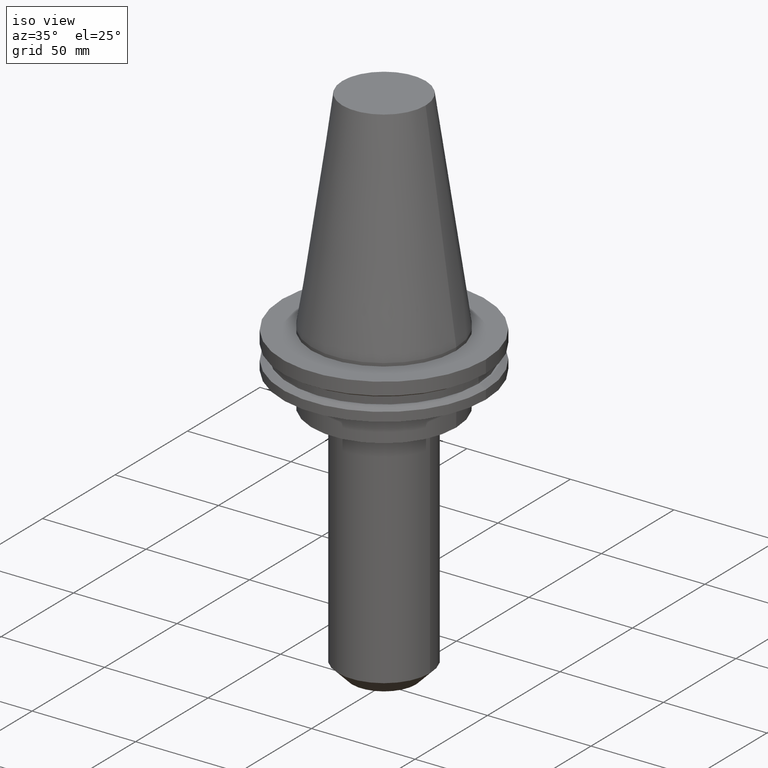
[diagram: clean part render]
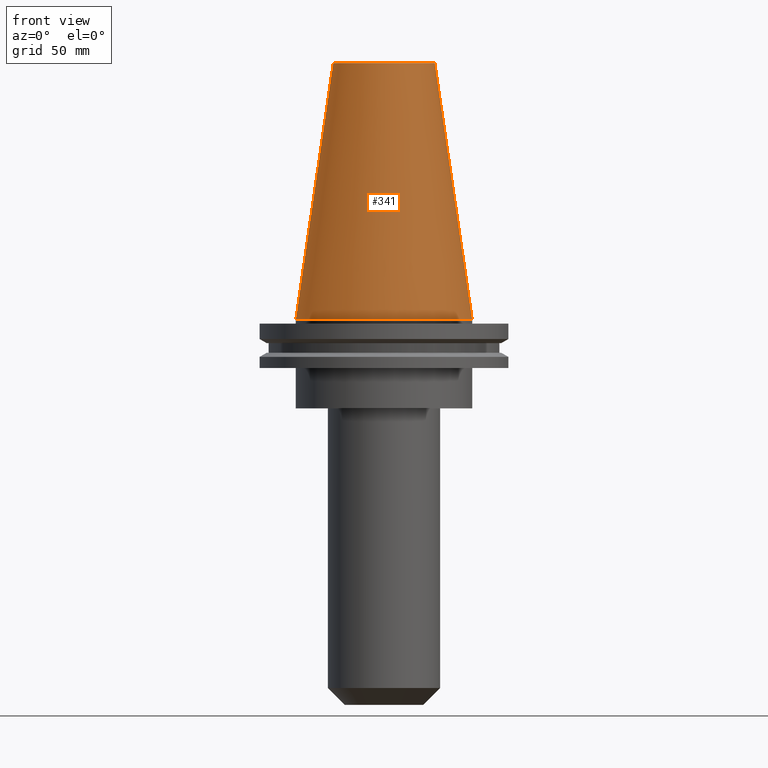
[diagram: tour spotlight — one face highlighted and labeled with its STEP entity id]
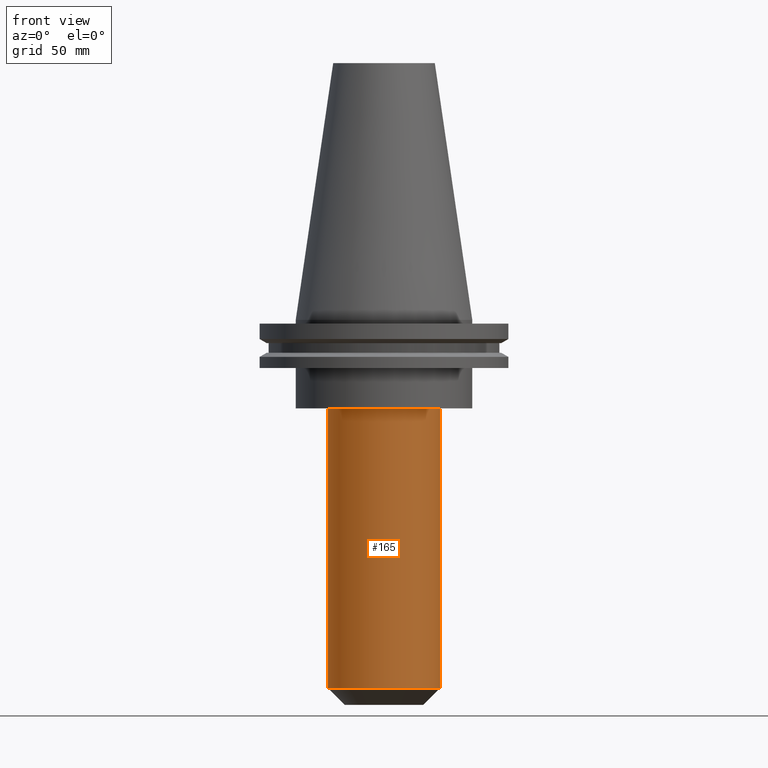
[diagram: tour spotlight — one face highlighted and labeled with its STEP entity id]
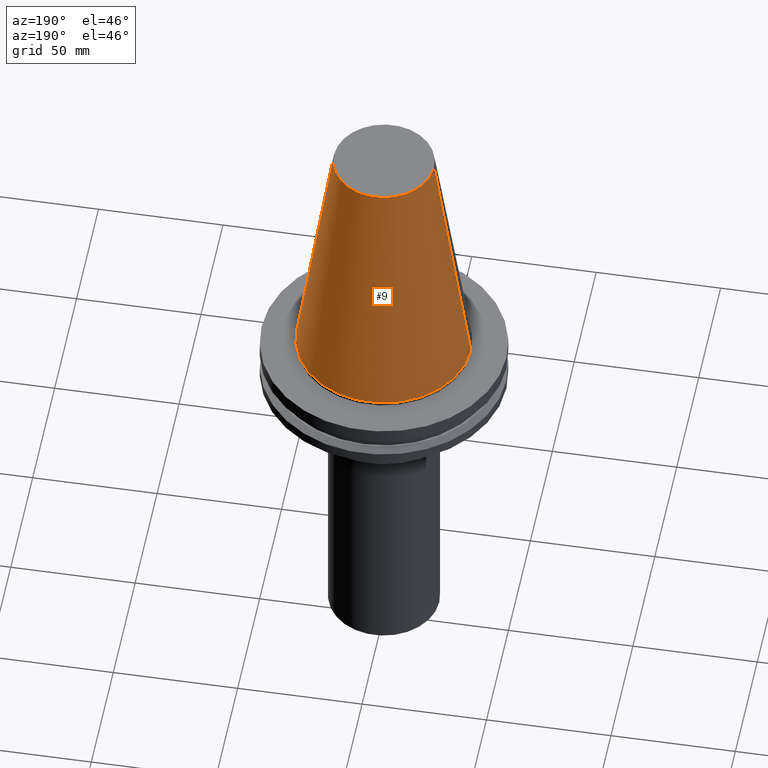
[diagram: tour spotlight — one face highlighted and labeled with its STEP entity id]
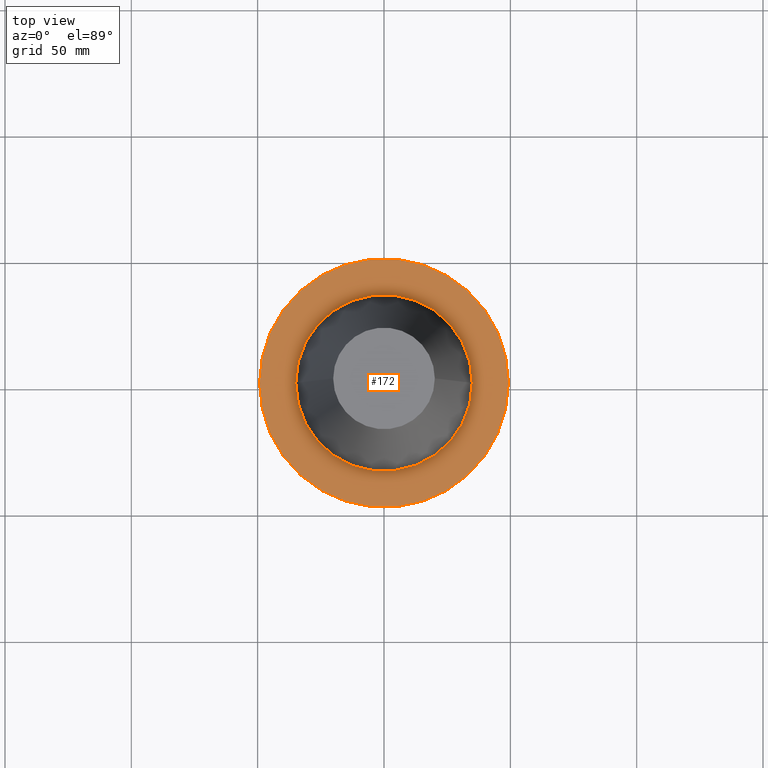
[diagram: tour spotlight — one face highlighted and labeled with its STEP entity id]
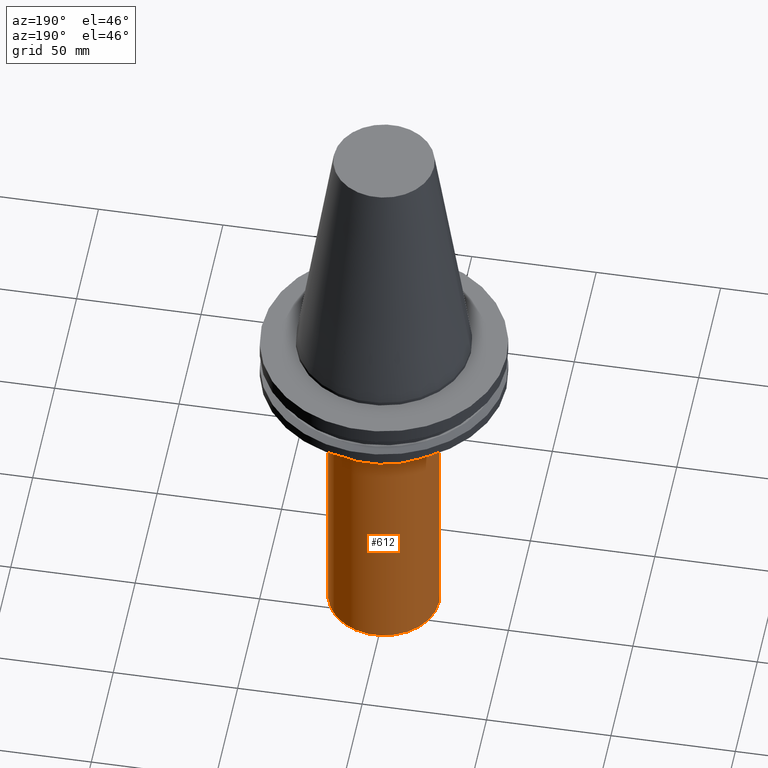
[diagram: tour spotlight — one face highlighted and labeled with its STEP entity id]
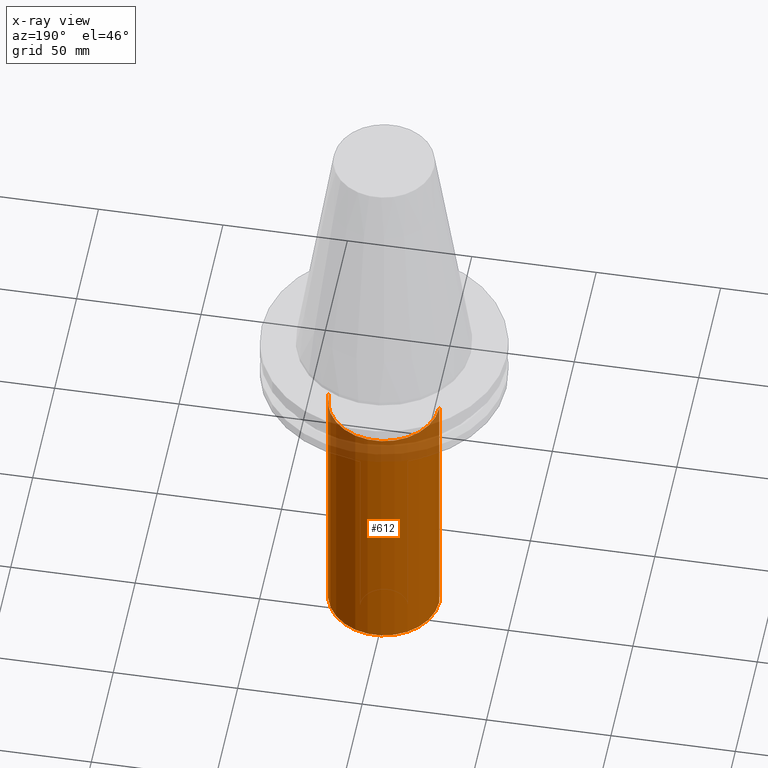
[diagram: x-ray of the same camera — body ghosted, this tour face saturated]
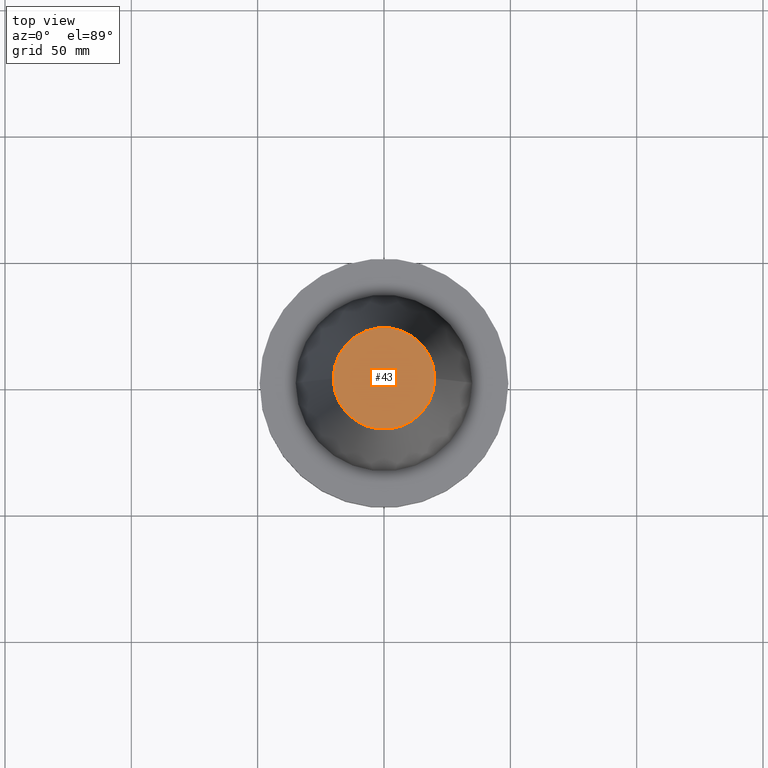
[diagram: tour spotlight — one face highlighted and labeled with its STEP entity id]
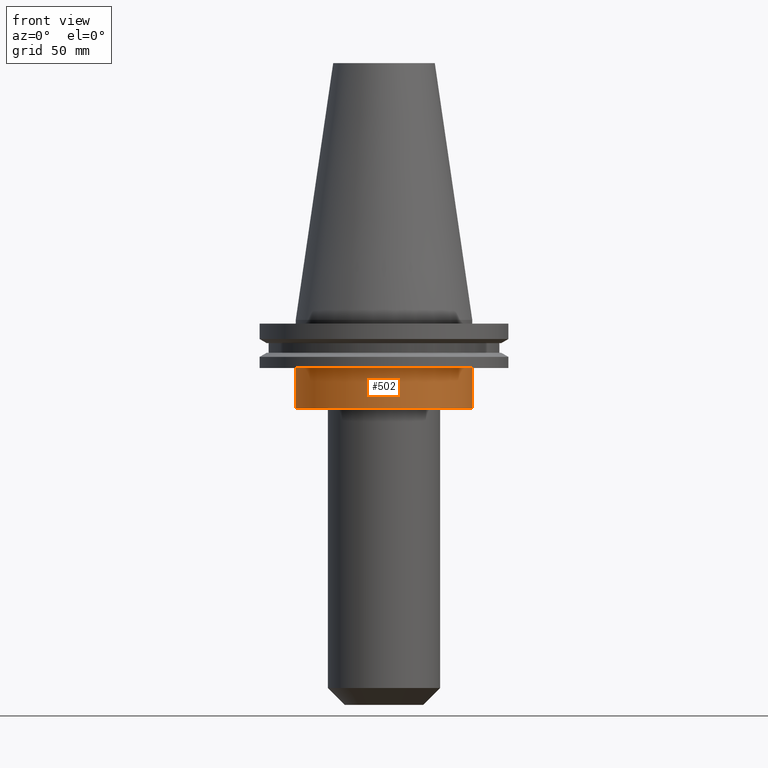
[diagram: tour spotlight — one face highlighted and labeled with its STEP entity id]
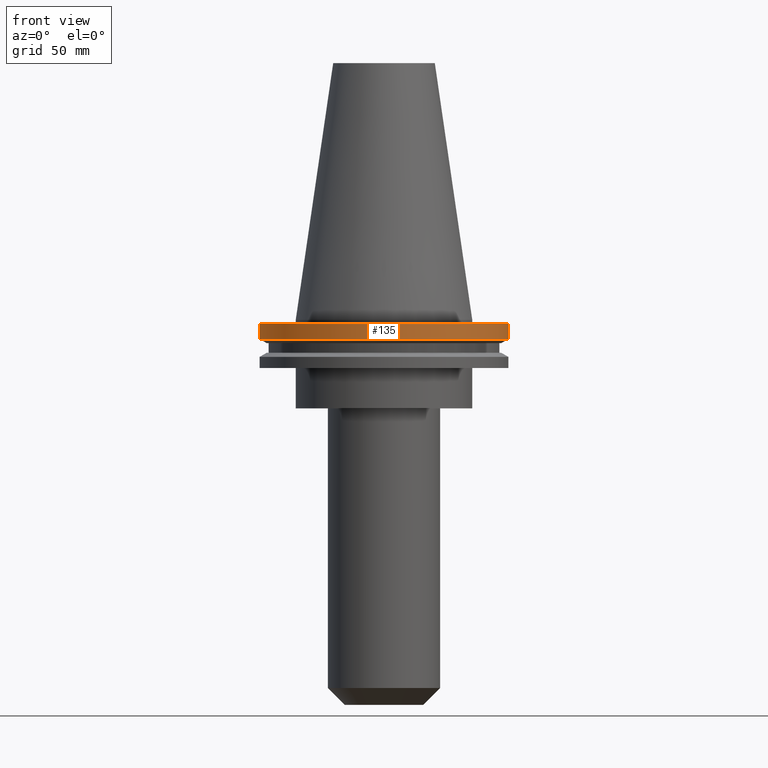
[diagram: tour spotlight — one face highlighted and labeled with its STEP entity id]
A machine part: a face-by-face anatomy tour. The part has 30 B-rep faces; the first image is the clean iso view, then the 8 largest visible faces are spotlighted one at a time (largest first), each with its STEP entity span.

Face 1 — front view, entity #341. In plain terms, the highlighted conical surface has half-angle 8.297 deg.
Definition (entity closure, byte-faithful):
#20 = CARTESIAN_POINT ( 'NONE',  ( 0.000000000000000000, 0.000000000000000000, 0.000000000000000000 ) ) ;
#33 = LINE ( 'NONE', #840, #645 ) ;
#36 = VECTOR ( 'NONE', #606, 999.9999999999998863 ) ;
#50 = CONICAL_SURFACE ( 'NONE', #580, 34.92499999999999005, 0.1448138465474119452 ) ;
#57 = ORIENTED_EDGE ( 'NONE', *, *, #664, .T. ) ;
#71 = VERTEX_POINT ( 'NONE', #381 ) ;
#140 = ORIENTED_EDGE ( 'NONE', *, *, #350, .F. ) ;
#144 = LINE ( 'NONE', #268, #36 ) ;
#150 = EDGE_CURVE ( 'NONE', #748, #406, #282, .T. ) ;
#164 = VERTEX_POINT ( 'NONE', #278 ) ;
#200 = CIRCLE ( 'NONE', #450, 20.10819343178871321 ) ;
#268 = CARTESIAN_POINT ( 'NONE',  ( -34.92499999999999005, 0.000000000000000000, 0.000000000000000000 ) ) ;
#278 = CARTESIAN_POINT ( 'NONE',  ( 20.10819343178871321, 3.369811209154858606E-15, 101.5999999999999801 ) ) ;
#282 = CIRCLE ( 'NONE', #497, 34.92499999999999005 ) ;
#290 = DIRECTION ( 'NONE',  ( 1.000000000000000000, 0.000000000000000000, 0.000000000000000000 ) ) ;
#305 = CARTESIAN_POINT ( 'NONE',  ( 34.92499999999999005, 4.277078946022130098E-15, 0.000000000000000000 ) ) ;
#335 = DIRECTION ( 'NONE',  ( -0.000000000000000000, -0.000000000000000000, 1.000000000000000000 ) ) ;
#341 = ADVANCED_FACE ( 'NONE', ( #500 ), #50, .T. ) ;
#350 = EDGE_CURVE ( 'NONE', #164, #406, #33, .T. ) ;
#381 = CARTESIAN_POINT ( 'NONE',  ( -20.10819343178871321, 0.000000000000000000, 101.5999999999999801 ) ) ;
#406 = VERTEX_POINT ( 'NONE', #305 ) ;
#434 = DIRECTION ( 'NONE',  ( 0.1443082272672999988, 1.767266086135277066E-17, -0.9895327864921755756 ) ) ;
#450 = AXIS2_PLACEMENT_3D ( 'NONE', #478, #804, #616 ) ;
#478 = CARTESIAN_POINT ( 'NONE',  ( 0.000000000000000000, 0.000000000000000000, 101.5999999999999801 ) ) ;
#485 = CARTESIAN_POINT ( 'NONE',  ( -34.92499999999999005, 0.000000000000000000, 0.000000000000000000 ) ) ;
#497 = AXIS2_PLACEMENT_3D ( 'NONE', #20, #335, #290 ) ;
#500 = FACE_OUTER_BOUND ( 'NONE', #641, .T. ) ;
#567 = DIRECTION ( 'NONE',  ( 0.000000000000000000, 0.000000000000000000, -1.000000000000000000 ) ) ;
#580 = AXIS2_PLACEMENT_3D ( 'NONE', #762, #567, #774 ) ;
#606 = DIRECTION ( 'NONE',  ( -0.1443082272672999988, 0.000000000000000000, -0.9895327864921755756 ) ) ;
#616 = DIRECTION ( 'NONE',  ( 1.000000000000000000, 0.000000000000000000, 0.000000000000000000 ) ) ;
#641 = EDGE_LOOP ( 'NONE', ( #140, #744, #57, #690 ) ) ;
#645 = VECTOR ( 'NONE', #434, 999.9999999999998863 ) ;
#664 = EDGE_CURVE ( 'NONE', #71, #748, #144, .T. ) ;
#690 = ORIENTED_EDGE ( 'NONE', *, *, #150, .T. ) ;
#698 = EDGE_CURVE ( 'NONE', #71, #164, #200, .T. ) ;
#744 = ORIENTED_EDGE ( 'NONE', *, *, #698, .F. ) ;
#748 = VERTEX_POINT ( 'NONE', #485 ) ;
#762 = CARTESIAN_POINT ( 'NONE',  ( 0.000000000000000000, 0.000000000000000000, 0.000000000000000000 ) ) ;
#774 = DIRECTION ( 'NONE',  ( -1.000000000000000000, 0.000000000000000000, 0.000000000000000000 ) ) ;
#804 = DIRECTION ( 'NONE',  ( -0.000000000000000000, -0.000000000000000000, 1.000000000000000000 ) ) ;
#840 = CARTESIAN_POINT ( 'NONE',  ( 34.92499999999999005, 4.277078946022130098E-15, 0.000000000000000000 ) ) ;

Face 2 — front view, entity #165. In plain terms, the highlighted cylindrical surface (partial cylindrical patch) has radius 22.225 mm, axis along (-0, -0, 1).
Definition (entity closure, byte-faithful):
#11 = CARTESIAN_POINT ( 'NONE',  ( 22.22500000000000497, 0.000000000000000000, -145.6999999999999318 ) ) ;
#28 = EDGE_LOOP ( 'NONE', ( #653, #62, #287, #119 ) ) ;
#37 = CIRCLE ( 'NONE', #520, 22.22500000000000497 ) ;
#38 = LINE ( 'NONE', #765, #309 ) ;
#62 = ORIENTED_EDGE ( 'NONE', *, *, #314, .T. ) ;
#77 = CIRCLE ( 'NONE', #673, 22.22499999999999432 ) ;
#89 = CARTESIAN_POINT ( 'NONE',  ( 22.22499999999999432, 0.000000000000000000, -35.04999999999999716 ) ) ;
#119 = ORIENTED_EDGE ( 'NONE', *, *, #637, .T. ) ;
#141 = CARTESIAN_POINT ( 'NONE',  ( 0.000000000000000000, 0.000000000000000000, -35.04999999999999716 ) ) ;
#143 = VERTEX_POINT ( 'NONE', #354 ) ;
#155 = EDGE_CURVE ( 'NONE', #696, #672, #559, .T. ) ;
#165 = ADVANCED_FACE ( 'NONE', ( #225 ), #492, .T. ) ;
#225 = FACE_OUTER_BOUND ( 'NONE', #28, .T. ) ;
#231 = DIRECTION ( 'NONE',  ( -0.000000000000000000, -0.000000000000000000, 1.000000000000000000 ) ) ;
#287 = ORIENTED_EDGE ( 'NONE', *, *, #155, .T. ) ;
#296 = VECTOR ( 'NONE', #487, 1000.000000000000000 ) ;
#302 = CARTESIAN_POINT ( 'NONE',  ( 0.000000000000000000, 0.000000000000000000, -145.6999999999999318 ) ) ;
#307 = AXIS2_PLACEMENT_3D ( 'NONE', #482, #625, #684 ) ;
#309 = VECTOR ( 'NONE', #628, 1000.000000000000000 ) ;
#314 = EDGE_CURVE ( 'NONE', #796, #696, #37, .T. ) ;
#354 = CARTESIAN_POINT ( 'NONE',  ( -22.22499999999999432, 2.721777511104992060E-15, -35.04999999999999716 ) ) ;
#387 = EDGE_CURVE ( 'NONE', #796, #143, #38, .T. ) ;
#416 = CARTESIAN_POINT ( 'NONE',  ( 22.22499999999999432, 0.000000000000000000, 0.000000000000000000 ) ) ;
#482 = CARTESIAN_POINT ( 'NONE',  ( 0.000000000000000000, 0.000000000000000000, 0.000000000000000000 ) ) ;
#487 = DIRECTION ( 'NONE',  ( -0.000000000000000000, -0.000000000000000000, 1.000000000000000000 ) ) ;
#492 = CYLINDRICAL_SURFACE ( 'NONE', #307, 22.22499999999999432 ) ;
#520 = AXIS2_PLACEMENT_3D ( 'NONE', #302, #231, #638 ) ;
#543 = DIRECTION ( 'NONE',  ( 0.000000000000000000, 0.000000000000000000, -1.000000000000000000 ) ) ;
#547 = DIRECTION ( 'NONE',  ( 1.000000000000000000, 0.000000000000000000, 0.000000000000000000 ) ) ;
#559 = LINE ( 'NONE', #416, #296 ) ;
#588 = CARTESIAN_POINT ( 'NONE',  ( -22.22500000000000497, 2.721777511104993243E-15, -145.6999999999999318 ) ) ;
#625 = DIRECTION ( 'NONE',  ( -0.000000000000000000, -0.000000000000000000, 1.000000000000000000 ) ) ;
#628 = DIRECTION ( 'NONE',  ( -0.000000000000000000, -0.000000000000000000, 1.000000000000000000 ) ) ;
#637 = EDGE_CURVE ( 'NONE', #672, #143, #77, .T. ) ;
#638 = DIRECTION ( 'NONE',  ( 1.000000000000000000, 0.000000000000000000, 0.000000000000000000 ) ) ;
#653 = ORIENTED_EDGE ( 'NONE', *, *, #387, .F. ) ;
#672 = VERTEX_POINT ( 'NONE', #89 ) ;
#673 = AXIS2_PLACEMENT_3D ( 'NONE', #141, #543, #547 ) ;
#684 = DIRECTION ( 'NONE',  ( 1.000000000000000000, 0.000000000000000000, 0.000000000000000000 ) ) ;
#696 = VERTEX_POINT ( 'NONE', #11 ) ;
#765 = CARTESIAN_POINT ( 'NONE',  ( -22.22499999999999432, 2.721777511104992060E-15, 0.000000000000000000 ) ) ;
#796 = VERTEX_POINT ( 'NONE', #588 ) ;

Face 3 — auxiliary view, entity #9. In plain terms, the highlighted conical surface has half-angle 8.297 deg.
Definition (entity closure, byte-faithful):
#9 = ADVANCED_FACE ( 'NONE', ( #55 ), #345, .T. ) ;
#33 = LINE ( 'NONE', #840, #645 ) ;
#36 = VECTOR ( 'NONE', #606, 999.9999999999998863 ) ;
#47 = CIRCLE ( 'NONE', #373, 20.10819343178871321 ) ;
#55 = FACE_OUTER_BOUND ( 'NONE', #822, .T. ) ;
#56 = EDGE_CURVE ( 'NONE', #164, #71, #47, .T. ) ;
#71 = VERTEX_POINT ( 'NONE', #381 ) ;
#126 = CARTESIAN_POINT ( 'NONE',  ( 0.000000000000000000, 0.000000000000000000, 0.000000000000000000 ) ) ;
#144 = LINE ( 'NONE', #268, #36 ) ;
#164 = VERTEX_POINT ( 'NONE', #278 ) ;
#169 = ORIENTED_EDGE ( 'NONE', *, *, #245, .T. ) ;
#245 = EDGE_CURVE ( 'NONE', #406, #748, #643, .T. ) ;
#263 = AXIS2_PLACEMENT_3D ( 'NONE', #126, #321, #461 ) ;
#268 = CARTESIAN_POINT ( 'NONE',  ( -34.92499999999999005, 0.000000000000000000, 0.000000000000000000 ) ) ;
#278 = CARTESIAN_POINT ( 'NONE',  ( 20.10819343178871321, 3.369811209154858606E-15, 101.5999999999999801 ) ) ;
#305 = CARTESIAN_POINT ( 'NONE',  ( 34.92499999999999005, 4.277078946022130098E-15, 0.000000000000000000 ) ) ;
#321 = DIRECTION ( 'NONE',  ( 0.000000000000000000, 0.000000000000000000, -1.000000000000000000 ) ) ;
#330 = DIRECTION ( 'NONE',  ( 1.000000000000000000, 0.000000000000000000, 0.000000000000000000 ) ) ;
#345 = CONICAL_SURFACE ( 'NONE', #263, 34.92499999999999005, 0.1448138465474119452 ) ;
#350 = EDGE_CURVE ( 'NONE', #164, #406, #33, .T. ) ;
#373 = AXIS2_PLACEMENT_3D ( 'NONE', #855, #728, #330 ) ;
#381 = CARTESIAN_POINT ( 'NONE',  ( -20.10819343178871321, 0.000000000000000000, 101.5999999999999801 ) ) ;
#406 = VERTEX_POINT ( 'NONE', #305 ) ;
#411 = DIRECTION ( 'NONE',  ( -0.000000000000000000, -0.000000000000000000, 1.000000000000000000 ) ) ;
#421 = ORIENTED_EDGE ( 'NONE', *, *, #350, .T. ) ;
#425 = CARTESIAN_POINT ( 'NONE',  ( 0.000000000000000000, 0.000000000000000000, 0.000000000000000000 ) ) ;
#434 = DIRECTION ( 'NONE',  ( 0.1443082272672999988, 1.767266086135277066E-17, -0.9895327864921755756 ) ) ;
#461 = DIRECTION ( 'NONE',  ( -1.000000000000000000, 0.000000000000000000, 0.000000000000000000 ) ) ;
#463 = AXIS2_PLACEMENT_3D ( 'NONE', #425, #411, #693 ) ;
#485 = CARTESIAN_POINT ( 'NONE',  ( -34.92499999999999005, 0.000000000000000000, 0.000000000000000000 ) ) ;
#575 = ORIENTED_EDGE ( 'NONE', *, *, #664, .F. ) ;
#595 = ORIENTED_EDGE ( 'NONE', *, *, #56, .F. ) ;
#606 = DIRECTION ( 'NONE',  ( -0.1443082272672999988, 0.000000000000000000, -0.9895327864921755756 ) ) ;
#643 = CIRCLE ( 'NONE', #463, 34.92499999999999005 ) ;
#645 = VECTOR ( 'NONE', #434, 999.9999999999998863 ) ;
#664 = EDGE_CURVE ( 'NONE', #71, #748, #144, .T. ) ;
#693 = DIRECTION ( 'NONE',  ( 1.000000000000000000, 0.000000000000000000, 0.000000000000000000 ) ) ;
#728 = DIRECTION ( 'NONE',  ( -0.000000000000000000, -0.000000000000000000, 1.000000000000000000 ) ) ;
#748 = VERTEX_POINT ( 'NONE', #485 ) ;
#822 = EDGE_LOOP ( 'NONE', ( #595, #421, #169, #575 ) ) ;
#840 = CARTESIAN_POINT ( 'NONE',  ( 34.92499999999999005, 4.277078946022130098E-15, 0.000000000000000000 ) ) ;
#855 = CARTESIAN_POINT ( 'NONE',  ( 0.000000000000000000, 0.000000000000000000, 101.5999999999999801 ) ) ;

Face 4 — top view, entity #172. In plain terms, the highlighted planar face has unit normal (0, 0, -1).
Definition (entity closure, byte-faithful):
#24 = DIRECTION ( 'NONE',  ( 1.000000000000000000, 0.000000000000000000, 0.000000000000000000 ) ) ;
#45 = EDGE_LOOP ( 'NONE', ( #573, #740 ) ) ;
#78 = CIRCLE ( 'NONE', #483, 49.21499999999999631 ) ;
#98 = DIRECTION ( 'NONE',  ( -0.000000000000000000, -0.000000000000000000, 1.000000000000000000 ) ) ;
#103 = DIRECTION ( 'NONE',  ( 1.000000000000000000, 0.000000000000000000, 0.000000000000000000 ) ) ;
#132 = CIRCLE ( 'NONE', #570, 49.21499999999999631 ) ;
#163 = DIRECTION ( 'NONE',  ( -0.000000000000000000, -0.000000000000000000, 1.000000000000000000 ) ) ;
#172 = ADVANCED_FACE ( 'NONE', ( #618, #811 ), #286, .F. ) ;
#180 = AXIS2_PLACEMENT_3D ( 'NONE', #687, #98, #418 ) ;
#193 = EDGE_CURVE ( 'NONE', #632, #223, #349, .T. ) ;
#210 = CARTESIAN_POINT ( 'NONE',  ( 0.000000000000000000, 0.000000000000000000, -1.499999999999987566 ) ) ;
#214 = AXIS2_PLACEMENT_3D ( 'NONE', #700, #747, #614 ) ;
#223 = VERTEX_POINT ( 'NONE', #814 ) ;
#224 = DIRECTION ( 'NONE',  ( -0.000000000000000000, -0.000000000000000000, 1.000000000000000000 ) ) ;
#233 = CARTESIAN_POINT ( 'NONE',  ( 49.21499999999999631, 0.000000000000000000, -1.499999999999987566 ) ) ;
#272 = EDGE_CURVE ( 'NONE', #583, #372, #78, .T. ) ;
#286 = PLANE ( 'NONE',  #579 ) ;
#298 = CIRCLE ( 'NONE', #180, 34.92499999999999005 ) ;
#344 = DIRECTION ( 'NONE',  ( -1.000000000000000000, 0.000000000000000000, -0.000000000000000000 ) ) ;
#349 = CIRCLE ( 'NONE', #214, 34.92499999999999005 ) ;
#372 = VERTEX_POINT ( 'NONE', #233 ) ;
#388 = ORIENTED_EDGE ( 'NONE', *, *, #193, .F. ) ;
#418 = DIRECTION ( 'NONE',  ( 1.000000000000000000, 0.000000000000000000, 0.000000000000000000 ) ) ;
#423 = CARTESIAN_POINT ( 'NONE',  ( -34.92499999999999005, 4.277078946022130098E-15, -1.499999999999987566 ) ) ;
#476 = CARTESIAN_POINT ( 'NONE',  ( 0.000000000000000000, 49.21499999999999631, -1.499999999999992895 ) ) ;
#483 = AXIS2_PLACEMENT_3D ( 'NONE', #679, #163, #103 ) ;
#550 = EDGE_LOOP ( 'NONE', ( #630, #388 ) ) ;
#570 = AXIS2_PLACEMENT_3D ( 'NONE', #210, #224, #24 ) ;
#573 = ORIENTED_EDGE ( 'NONE', *, *, #691, .T. ) ;
#579 = AXIS2_PLACEMENT_3D ( 'NONE', #476, #610, #344 ) ;
#583 = VERTEX_POINT ( 'NONE', #650 ) ;
#602 = EDGE_CURVE ( 'NONE', #223, #632, #298, .T. ) ;
#610 = DIRECTION ( 'NONE',  ( 0.000000000000000000, 0.000000000000000000, -1.000000000000000000 ) ) ;
#614 = DIRECTION ( 'NONE',  ( 1.000000000000000000, 0.000000000000000000, 0.000000000000000000 ) ) ;
#618 = FACE_BOUND ( 'NONE', #550, .T. ) ;
#630 = ORIENTED_EDGE ( 'NONE', *, *, #602, .F. ) ;
#632 = VERTEX_POINT ( 'NONE', #423 ) ;
#650 = CARTESIAN_POINT ( 'NONE',  ( -49.21499999999999631, 6.027099222003697826E-15, -1.499999999999987566 ) ) ;
#679 = CARTESIAN_POINT ( 'NONE',  ( 0.000000000000000000, 0.000000000000000000, -1.499999999999987566 ) ) ;
#687 = CARTESIAN_POINT ( 'NONE',  ( 0.000000000000000000, 0.000000000000000000, -1.499999999999987566 ) ) ;
#691 = EDGE_CURVE ( 'NONE', #372, #583, #132, .T. ) ;
#700 = CARTESIAN_POINT ( 'NONE',  ( 0.000000000000000000, 0.000000000000000000, -1.499999999999987566 ) ) ;
#740 = ORIENTED_EDGE ( 'NONE', *, *, #272, .T. ) ;
#747 = DIRECTION ( 'NONE',  ( -0.000000000000000000, -0.000000000000000000, 1.000000000000000000 ) ) ;
#811 = FACE_OUTER_BOUND ( 'NONE', #45, .T. ) ;
#814 = CARTESIAN_POINT ( 'NONE',  ( 34.92499999999999005, 0.000000000000000000, -1.499999999999987566 ) ) ;

Face 5 — auxiliary view, entity #612. An x-ray twin of the same camera follows (body ghosted, this face saturated) — the face is partly hidden behind the body. In plain terms, the highlighted cylindrical surface (partial cylindrical patch) has radius 22.225 mm, axis along (-0, -0, 1).
Definition (entity closure, byte-faithful):
#11 = CARTESIAN_POINT ( 'NONE',  ( 22.22500000000000497, 0.000000000000000000, -145.6999999999999318 ) ) ;
#15 = ORIENTED_EDGE ( 'NONE', *, *, #387, .T. ) ;
#38 = LINE ( 'NONE', #765, #309 ) ;
#89 = CARTESIAN_POINT ( 'NONE',  ( 22.22499999999999432, 0.000000000000000000, -35.04999999999999716 ) ) ;
#118 = DIRECTION ( 'NONE',  ( -0.000000000000000000, -0.000000000000000000, 1.000000000000000000 ) ) ;
#121 = DIRECTION ( 'NONE',  ( 0.000000000000000000, 0.000000000000000000, -1.000000000000000000 ) ) ;
#143 = VERTEX_POINT ( 'NONE', #354 ) ;
#155 = EDGE_CURVE ( 'NONE', #696, #672, #559, .T. ) ;
#176 = ORIENTED_EDGE ( 'NONE', *, *, #541, .T. ) ;
#190 = DIRECTION ( 'NONE',  ( 1.000000000000000000, 0.000000000000000000, 0.000000000000000000 ) ) ;
#273 = DIRECTION ( 'NONE',  ( -0.000000000000000000, -0.000000000000000000, 1.000000000000000000 ) ) ;
#279 = CIRCLE ( 'NONE', #717, 22.22499999999999432 ) ;
#296 = VECTOR ( 'NONE', #487, 1000.000000000000000 ) ;
#309 = VECTOR ( 'NONE', #628, 1000.000000000000000 ) ;
#317 = DIRECTION ( 'NONE',  ( 1.000000000000000000, 0.000000000000000000, 0.000000000000000000 ) ) ;
#332 = AXIS2_PLACEMENT_3D ( 'NONE', #791, #118, #317 ) ;
#334 = CYLINDRICAL_SURFACE ( 'NONE', #521, 22.22499999999999432 ) ;
#351 = FACE_OUTER_BOUND ( 'NONE', #832, .T. ) ;
#354 = CARTESIAN_POINT ( 'NONE',  ( -22.22499999999999432, 2.721777511104992060E-15, -35.04999999999999716 ) ) ;
#387 = EDGE_CURVE ( 'NONE', #796, #143, #38, .T. ) ;
#416 = CARTESIAN_POINT ( 'NONE',  ( 22.22499999999999432, 0.000000000000000000, 0.000000000000000000 ) ) ;
#448 = ORIENTED_EDGE ( 'NONE', *, *, #155, .F. ) ;
#487 = DIRECTION ( 'NONE',  ( -0.000000000000000000, -0.000000000000000000, 1.000000000000000000 ) ) ;
#521 = AXIS2_PLACEMENT_3D ( 'NONE', #669, #273, #675 ) ;
#541 = EDGE_CURVE ( 'NONE', #143, #672, #279, .T. ) ;
#559 = LINE ( 'NONE', #416, #296 ) ;
#588 = CARTESIAN_POINT ( 'NONE',  ( -22.22500000000000497, 2.721777511104993243E-15, -145.6999999999999318 ) ) ;
#597 = CARTESIAN_POINT ( 'NONE',  ( 0.000000000000000000, 0.000000000000000000, -35.04999999999999716 ) ) ;
#612 = ADVANCED_FACE ( 'NONE', ( #351 ), #334, .T. ) ;
#628 = DIRECTION ( 'NONE',  ( -0.000000000000000000, -0.000000000000000000, 1.000000000000000000 ) ) ;
#669 = CARTESIAN_POINT ( 'NONE',  ( 0.000000000000000000, 0.000000000000000000, 0.000000000000000000 ) ) ;
#672 = VERTEX_POINT ( 'NONE', #89 ) ;
#675 = DIRECTION ( 'NONE',  ( 1.000000000000000000, 0.000000000000000000, 0.000000000000000000 ) ) ;
#696 = VERTEX_POINT ( 'NONE', #11 ) ;
#717 = AXIS2_PLACEMENT_3D ( 'NONE', #597, #121, #190 ) ;
#730 = ORIENTED_EDGE ( 'NONE', *, *, #818, .T. ) ;
#765 = CARTESIAN_POINT ( 'NONE',  ( -22.22499999999999432, 2.721777511104992060E-15, 0.000000000000000000 ) ) ;
#773 = CIRCLE ( 'NONE', #332, 22.22500000000000497 ) ;
#791 = CARTESIAN_POINT ( 'NONE',  ( 0.000000000000000000, 0.000000000000000000, -145.6999999999999318 ) ) ;
#796 = VERTEX_POINT ( 'NONE', #588 ) ;
#818 = EDGE_CURVE ( 'NONE', #696, #796, #773, .T. ) ;
#832 = EDGE_LOOP ( 'NONE', ( #730, #15, #176, #448 ) ) ;

Face 6 — top view, entity #43. In plain terms, the highlighted planar face has unit normal (0, 0, -1).
Definition (entity closure, byte-faithful):
#4 = FACE_OUTER_BOUND ( 'NONE', #771, .T. ) ;
#43 = ADVANCED_FACE ( 'NONE', ( #4 ), #255, .F. ) ;
#47 = CIRCLE ( 'NONE', #373, 20.10819343178871321 ) ;
#56 = EDGE_CURVE ( 'NONE', #164, #71, #47, .T. ) ;
#65 = DIRECTION ( 'NONE',  ( -1.000000000000000000, 0.000000000000000000, -0.000000000000000000 ) ) ;
#71 = VERTEX_POINT ( 'NONE', #381 ) ;
#107 = AXIS2_PLACEMENT_3D ( 'NONE', #844, #725, #65 ) ;
#164 = VERTEX_POINT ( 'NONE', #278 ) ;
#200 = CIRCLE ( 'NONE', #450, 20.10819343178871321 ) ;
#255 = PLANE ( 'NONE',  #107 ) ;
#267 = ORIENTED_EDGE ( 'NONE', *, *, #698, .T. ) ;
#276 = ORIENTED_EDGE ( 'NONE', *, *, #56, .T. ) ;
#278 = CARTESIAN_POINT ( 'NONE',  ( 20.10819343178871321, 3.369811209154858606E-15, 101.5999999999999801 ) ) ;
#330 = DIRECTION ( 'NONE',  ( 1.000000000000000000, 0.000000000000000000, 0.000000000000000000 ) ) ;
#373 = AXIS2_PLACEMENT_3D ( 'NONE', #855, #728, #330 ) ;
#381 = CARTESIAN_POINT ( 'NONE',  ( -20.10819343178871321, 0.000000000000000000, 101.5999999999999801 ) ) ;
#450 = AXIS2_PLACEMENT_3D ( 'NONE', #478, #804, #616 ) ;
#478 = CARTESIAN_POINT ( 'NONE',  ( 0.000000000000000000, 0.000000000000000000, 101.5999999999999801 ) ) ;
#616 = DIRECTION ( 'NONE',  ( 1.000000000000000000, 0.000000000000000000, 0.000000000000000000 ) ) ;
#698 = EDGE_CURVE ( 'NONE', #71, #164, #200, .T. ) ;
#725 = DIRECTION ( 'NONE',  ( 0.000000000000000000, 0.000000000000000000, -1.000000000000000000 ) ) ;
#728 = DIRECTION ( 'NONE',  ( -0.000000000000000000, -0.000000000000000000, 1.000000000000000000 ) ) ;
#771 = EDGE_LOOP ( 'NONE', ( #267, #276 ) ) ;
#804 = DIRECTION ( 'NONE',  ( -0.000000000000000000, -0.000000000000000000, 1.000000000000000000 ) ) ;
#844 = CARTESIAN_POINT ( 'NONE',  ( 0.000000000000000000, 20.10819343178871321, 101.5999999999999943 ) ) ;
#855 = CARTESIAN_POINT ( 'NONE',  ( 0.000000000000000000, 0.000000000000000000, 101.5999999999999801 ) ) ;

Face 7 — front view, entity #502. In plain terms, the highlighted cylindrical surface (partial cylindrical patch) has radius 34.925 mm, axis along (-0, -0, 1).
Definition (entity closure, byte-faithful):
#27 = AXIS2_PLACEMENT_3D ( 'NONE', #780, #720, #785 ) ;
#53 = CYLINDRICAL_SURFACE ( 'NONE', #364, 34.92499999999999716 ) ;
#59 = VECTOR ( 'NONE', #128, 1000.000000000000000 ) ;
#83 = ORIENTED_EDGE ( 'NONE', *, *, #488, .F. ) ;
#123 = VERTEX_POINT ( 'NONE', #604 ) ;
#128 = DIRECTION ( 'NONE',  ( -0.000000000000000000, -0.000000000000000000, 1.000000000000000000 ) ) ;
#136 = FACE_OUTER_BOUND ( 'NONE', #841, .T. ) ;
#152 = DIRECTION ( 'NONE',  ( -0.000000000000000000, -0.000000000000000000, 1.000000000000000000 ) ) ;
#181 = CARTESIAN_POINT ( 'NONE',  ( -34.92499999999999716, 4.277078946022130887E-15, -19.04999999999999716 ) ) ;
#182 = VECTOR ( 'NONE', #367, 1000.000000000000000 ) ;
#185 = AXIS2_PLACEMENT_3D ( 'NONE', #216, #152, #692 ) ;
#216 = CARTESIAN_POINT ( 'NONE',  ( 0.000000000000000000, 0.000000000000000000, -19.04999999999999716 ) ) ;
#249 = CARTESIAN_POINT ( 'NONE',  ( 0.000000000000000000, 0.000000000000000000, 101.5999999999999943 ) ) ;
#301 = EDGE_CURVE ( 'NONE', #787, #812, #704, .T. ) ;
#323 = DIRECTION ( 'NONE',  ( 1.000000000000000000, 0.000000000000000000, 0.000000000000000000 ) ) ;
#356 = CARTESIAN_POINT ( 'NONE',  ( 34.92499999999999716, 0.000000000000000000, -35.04999999999999716 ) ) ;
#358 = ORIENTED_EDGE ( 'NONE', *, *, #301, .T. ) ;
#364 = AXIS2_PLACEMENT_3D ( 'NONE', #249, #376, #323 ) ;
#367 = DIRECTION ( 'NONE',  ( -0.000000000000000000, -0.000000000000000000, 1.000000000000000000 ) ) ;
#376 = DIRECTION ( 'NONE',  ( -0.000000000000000000, -0.000000000000000000, 1.000000000000000000 ) ) ;
#398 = CIRCLE ( 'NONE', #27, 34.92499999999999716 ) ;
#438 = CIRCLE ( 'NONE', #185, 34.92499999999999716 ) ;
#458 = VERTEX_POINT ( 'NONE', #181 ) ;
#488 = EDGE_CURVE ( 'NONE', #123, #458, #779, .T. ) ;
#502 = ADVANCED_FACE ( 'NONE', ( #136 ), #53, .T. ) ;
#505 = CARTESIAN_POINT ( 'NONE',  ( 34.92499999999999716, 0.000000000000000000, 101.5999999999999943 ) ) ;
#506 = ORIENTED_EDGE ( 'NONE', *, *, #852, .T. ) ;
#527 = CARTESIAN_POINT ( 'NONE',  ( 34.92499999999999716, 0.000000000000000000, -19.04999999999999716 ) ) ;
#604 = CARTESIAN_POINT ( 'NONE',  ( -34.92499999999999716, 4.277078946022130887E-15, -35.04999999999999716 ) ) ;
#661 = CARTESIAN_POINT ( 'NONE',  ( -34.92499999999999716, 4.277078946022130887E-15, 101.5999999999999943 ) ) ;
#692 = DIRECTION ( 'NONE',  ( 1.000000000000000000, 0.000000000000000000, 0.000000000000000000 ) ) ;
#704 = LINE ( 'NONE', #505, #182 ) ;
#720 = DIRECTION ( 'NONE',  ( -0.000000000000000000, -0.000000000000000000, 1.000000000000000000 ) ) ;
#752 = EDGE_CURVE ( 'NONE', #458, #812, #438, .T. ) ;
#779 = LINE ( 'NONE', #661, #59 ) ;
#780 = CARTESIAN_POINT ( 'NONE',  ( 0.000000000000000000, 0.000000000000000000, -35.04999999999999716 ) ) ;
#785 = DIRECTION ( 'NONE',  ( 1.000000000000000000, 0.000000000000000000, 0.000000000000000000 ) ) ;
#787 = VERTEX_POINT ( 'NONE', #356 ) ;
#812 = VERTEX_POINT ( 'NONE', #527 ) ;
#829 = ORIENTED_EDGE ( 'NONE', *, *, #752, .F. ) ;
#841 = EDGE_LOOP ( 'NONE', ( #83, #506, #358, #829 ) ) ;
#852 = EDGE_CURVE ( 'NONE', #123, #787, #398, .T. ) ;

Face 8 — front view, entity #135. In plain terms, the highlighted cylindrical surface (partial cylindrical patch) has radius 49.215 mm, axis along (-0, -0, 1).
Definition (entity closure, byte-faithful):
#78 = CIRCLE ( 'NONE', #483, 49.21499999999999631 ) ;
#103 = DIRECTION ( 'NONE',  ( 1.000000000000000000, 0.000000000000000000, 0.000000000000000000 ) ) ;
#112 = VERTEX_POINT ( 'NONE', #467 ) ;
#135 = ADVANCED_FACE ( 'NONE', ( #265 ), #540, .T. ) ;
#149 = DIRECTION ( 'NONE',  ( -0.000000000000000000, -0.000000000000000000, 1.000000000000000000 ) ) ;
#163 = DIRECTION ( 'NONE',  ( -0.000000000000000000, -0.000000000000000000, 1.000000000000000000 ) ) ;
#168 = CARTESIAN_POINT ( 'NONE',  ( 0.000000000000000000, 0.000000000000000000, -7.602389855251287187 ) ) ;
#203 = VERTEX_POINT ( 'NONE', #275 ) ;
#222 = EDGE_CURVE ( 'NONE', #112, #583, #554, .T. ) ;
#233 = CARTESIAN_POINT ( 'NONE',  ( 49.21499999999999631, 0.000000000000000000, -1.499999999999987566 ) ) ;
#265 = FACE_OUTER_BOUND ( 'NONE', #294, .T. ) ;
#272 = EDGE_CURVE ( 'NONE', #583, #372, #78, .T. ) ;
#275 = CARTESIAN_POINT ( 'NONE',  ( 49.21500000000000341, 0.000000000000000000, -7.602389855251287187 ) ) ;
#294 = EDGE_LOOP ( 'NONE', ( #337, #636, #738, #489 ) ) ;
#337 = ORIENTED_EDGE ( 'NONE', *, *, #222, .F. ) ;
#372 = VERTEX_POINT ( 'NONE', #233 ) ;
#403 = EDGE_CURVE ( 'NONE', #112, #203, #798, .T. ) ;
#431 = CARTESIAN_POINT ( 'NONE',  ( -49.21499999999999631, 6.027099222003697826E-15, 101.5999999999999943 ) ) ;
#433 = EDGE_CURVE ( 'NONE', #203, #372, #574, .T. ) ;
#436 = DIRECTION ( 'NONE',  ( 1.000000000000000000, 0.000000000000000000, 0.000000000000000000 ) ) ;
#443 = DIRECTION ( 'NONE',  ( -0.000000000000000000, -0.000000000000000000, 1.000000000000000000 ) ) ;
#467 = CARTESIAN_POINT ( 'NONE',  ( -49.21500000000000341, 6.027099222003699404E-15, -7.602389855251287187 ) ) ;
#483 = AXIS2_PLACEMENT_3D ( 'NONE', #679, #163, #103 ) ;
#489 = ORIENTED_EDGE ( 'NONE', *, *, #272, .F. ) ;
#507 = VECTOR ( 'NONE', #513, 1000.000000000000000 ) ;
#513 = DIRECTION ( 'NONE',  ( -0.000000000000000000, -0.000000000000000000, 1.000000000000000000 ) ) ;
#535 = AXIS2_PLACEMENT_3D ( 'NONE', #801, #806, #817 ) ;
#538 = AXIS2_PLACEMENT_3D ( 'NONE', #168, #443, #436 ) ;
#540 = CYLINDRICAL_SURFACE ( 'NONE', #535, 49.21499999999999631 ) ;
#554 = LINE ( 'NONE', #431, #838 ) ;
#574 = LINE ( 'NONE', #709, #507 ) ;
#583 = VERTEX_POINT ( 'NONE', #650 ) ;
#636 = ORIENTED_EDGE ( 'NONE', *, *, #403, .T. ) ;
#650 = CARTESIAN_POINT ( 'NONE',  ( -49.21499999999999631, 6.027099222003697826E-15, -1.499999999999987566 ) ) ;
#679 = CARTESIAN_POINT ( 'NONE',  ( 0.000000000000000000, 0.000000000000000000, -1.499999999999987566 ) ) ;
#709 = CARTESIAN_POINT ( 'NONE',  ( 49.21499999999999631, 0.000000000000000000, 101.5999999999999943 ) ) ;
#738 = ORIENTED_EDGE ( 'NONE', *, *, #433, .T. ) ;
#798 = CIRCLE ( 'NONE', #538, 49.21500000000000341 ) ;
#801 = CARTESIAN_POINT ( 'NONE',  ( 0.000000000000000000, 0.000000000000000000, 101.5999999999999943 ) ) ;
#806 = DIRECTION ( 'NONE',  ( -0.000000000000000000, -0.000000000000000000, 1.000000000000000000 ) ) ;
#817 = DIRECTION ( 'NONE',  ( 1.000000000000000000, 0.000000000000000000, 0.000000000000000000 ) ) ;
#838 = VECTOR ( 'NONE', #149, 1000.000000000000000 ) ;